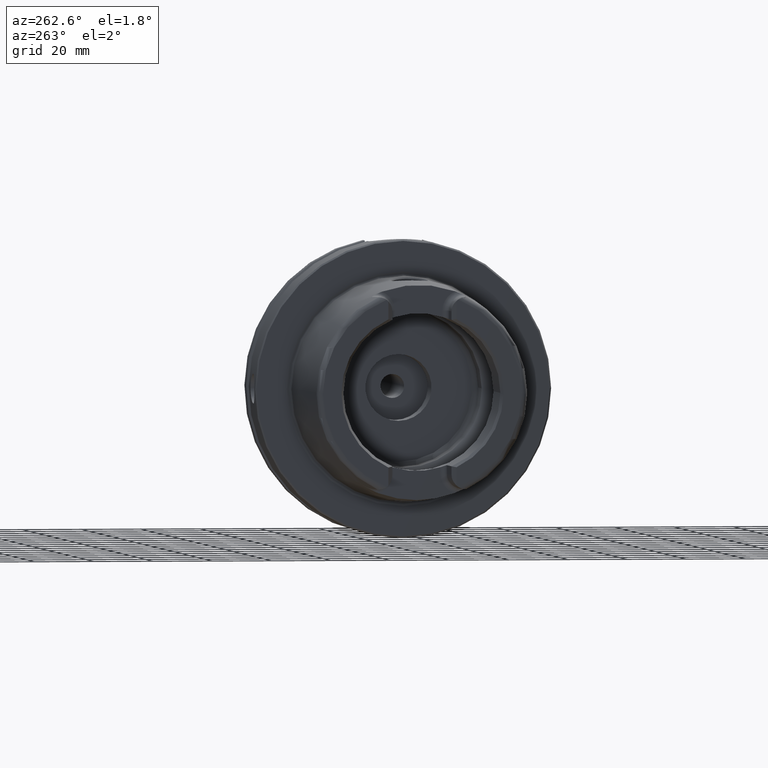
[diagram: clean part render]
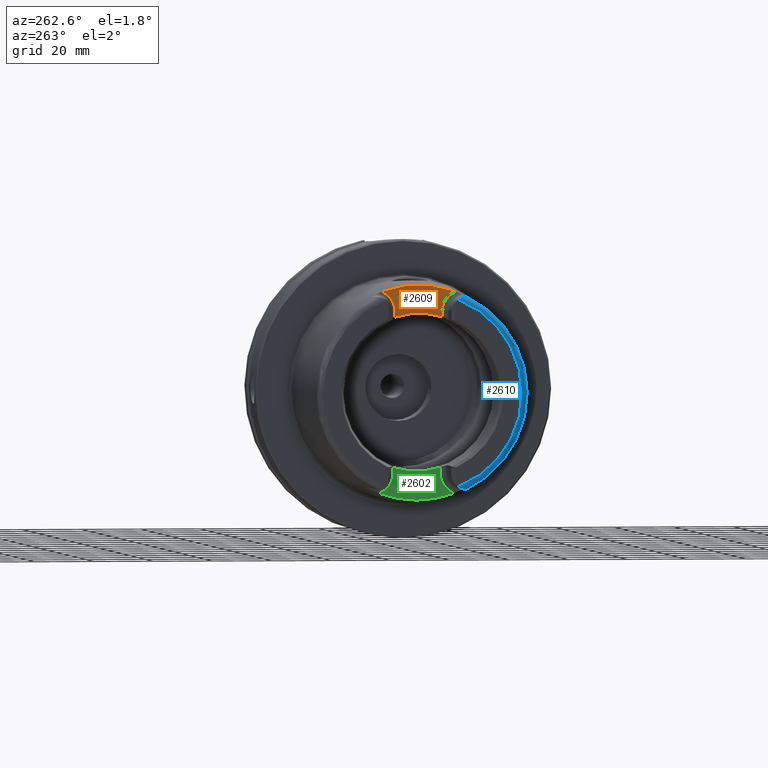
[diagram: same view with three faces highlighted in distinct colors, each labeled with its STEP entity id]
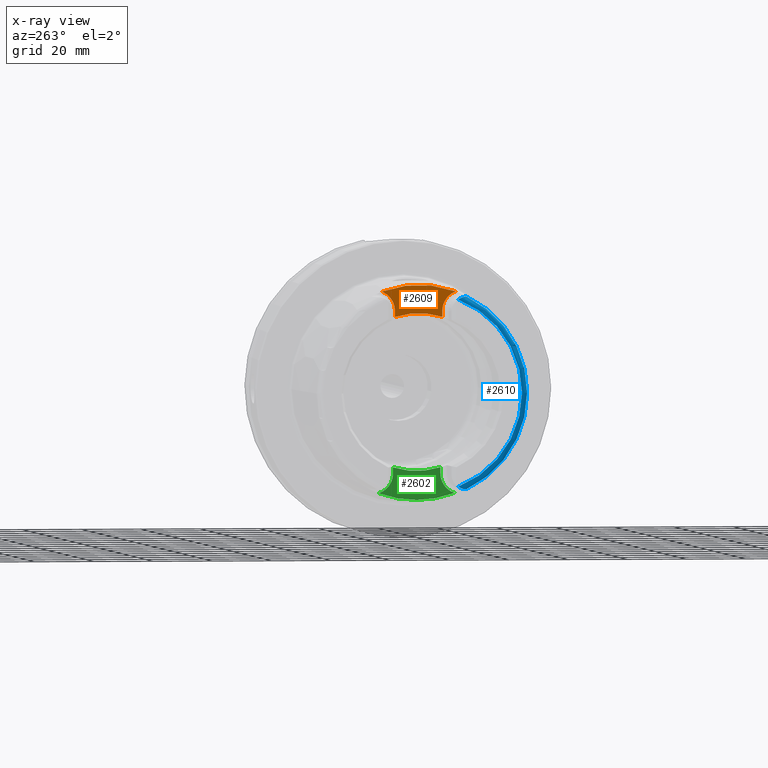
[diagram: x-ray of the same camera — body ghosted, the three highlighted faces saturated]
A machine part, auxiliary view with three faces highlighted in distinct colors.
The next image is the same camera in x-ray (body ghosted, the three faces saturated) — at least one of them is partly hidden behind the body in this view.
Their STEP definitions:

[orange] entity #2609 — the highlighted planar face has unit normal (-1, 0, 0).
#168=PLANE('',#2948);
#272=LINE('',#5372,#386);
#273=LINE('',#5401,#387);
#386=VECTOR('',#3643,10.);
#387=VECTOR('',#3656,10.);
#532=FACE_OUTER_BOUND('',#673,.T.);
#673=EDGE_LOOP('',(#2290,#2291,#2292,#2293,#2294,#2295));
#825=CIRCLE('',#2830,36.003493987976);
#873=CIRCLE('',#2921,6.88);
#875=CIRCLE('',#2924,6.88);
#887=CIRCLE('',#2949,26.5);
#1079=VERTEX_POINT('',#4536);
#1080=VERTEX_POINT('',#4553);
#1178=VERTEX_POINT('',#5369);
#1179=VERTEX_POINT('',#5371);
#1180=VERTEX_POINT('',#5386);
#1181=VERTEX_POINT('',#5390);
#1409=EDGE_CURVE('',#1079,#1080,#825,.T.);
#1554=EDGE_CURVE('',#1178,#1179,#272,.T.);
#1556=EDGE_CURVE('',#1080,#1178,#873,.T.);
#1558=EDGE_CURVE('',#1180,#1079,#875,.T.);
#1560=EDGE_CURVE('',#1181,#1180,#273,.T.);
#1581=EDGE_CURVE('',#1179,#1181,#887,.T.);
#2290=ORIENTED_EDGE('',*,*,#1556,.F.);
#2291=ORIENTED_EDGE('',*,*,#1409,.F.);
#2292=ORIENTED_EDGE('',*,*,#1558,.F.);
#2293=ORIENTED_EDGE('',*,*,#1560,.F.);
#2294=ORIENTED_EDGE('',*,*,#1581,.F.);
#2295=ORIENTED_EDGE('',*,*,#1554,.F.);
#2609=ADVANCED_FACE('',(#532),#168,.T.);
#2830=AXIS2_PLACEMENT_3D('',#4554,#3412,#3413);
#2921=AXIS2_PLACEMENT_3D('',#5384,#3646,#3647);
#2924=AXIS2_PLACEMENT_3D('',#5388,#3652,#3653);
#2948=AXIS2_PLACEMENT_3D('',#5459,#3708,#3709);
#2949=AXIS2_PLACEMENT_3D('',#5460,#3710,#3711);
#3412=DIRECTION('center_axis',(1.,0.,0.));
#3413=DIRECTION('ref_axis',(0.,1.,0.));
#3643=DIRECTION('',(0.,0.,-1.));
#3646=DIRECTION('center_axis',(-1.,0.,0.));
#3647=DIRECTION('ref_axis',(0.,0.564947834751706,0.82512662301574));
#3652=DIRECTION('center_axis',(-1.,0.,0.));
#3653=DIRECTION('ref_axis',(0.,-0.564947834751705,0.825126623015741));
#3656=DIRECTION('',(0.,0.,1.));
#3708=DIRECTION('center_axis',(-1.,0.,0.));
#3709=DIRECTION('ref_axis',(0.,0.,1.));
#3710=DIRECTION('center_axis',(-1.,0.,0.));
#3711=DIRECTION('ref_axis',(0.,1.,0.));
#4536=CARTESIAN_POINT('',(-40.,12.4227760464511,33.7923987701664));
#4553=CARTESIAN_POINT('',(-40.,-12.4227760464511,33.7923987701664));
#4554=CARTESIAN_POINT('Origin',(-40.,0.,0.));
#5369=CARTESIAN_POINT('',(-40.,-8.01,27.37));
#5371=CARTESIAN_POINT('',(-40.,-8.01,25.2604414054862));
#5372=CARTESIAN_POINT('',(-40.,-8.01,23.5));
#5384=CARTESIAN_POINT('Origin',(-40.,-14.89,27.37));
#5386=CARTESIAN_POINT('',(-40.,8.01,27.37));
#5388=CARTESIAN_POINT('Origin',(-40.,14.89,27.37));
#5390=CARTESIAN_POINT('',(-40.,8.01,25.2604414054862));
#5401=CARTESIAN_POINT('',(-40.,8.01,28.185));
#5459=CARTESIAN_POINT('Origin',(-40.,0.,29.));
#5460=CARTESIAN_POINT('Origin',(-40.,0.,0.));

[blue] entity #2610 — the highlighted toroidal blend (fillet) surface has major radius 33.6002 mm and minor (blend) radius 2 mm.
#33=B_SPLINE_CURVE_WITH_KNOTS('',3,(#4219,#4220,#4221,#4222,#4223,#4224,
#4225,#4226,#4227,#4228,#4229,#4230),.UNSPECIFIED.,.F.,.F.,(4,2,2,2,2,4),
(-0.744571126726518,-0.701342830888641,-0.656522678464628,-0.531122919946975,
-0.406784567241786,-0.320835419118986),.UNSPECIFIED.);
#84=B_SPLINE_CURVE_WITH_KNOTS('',3,(#5462,#5463,#5464,#5465,#5466,#5467,
#5468,#5469,#5470,#5471,#5472,#5473),.UNSPECIFIED.,.F.,.F.,(4,2,2,2,2,4),
(-0.330531435638092,-0.267908000768824,-0.159978118105095,-0.0786368985358016,
-0.0319888850382436,0.),.UNSPECIFIED.);
#533=FACE_OUTER_BOUND('',#674,.T.);
#674=EDGE_LOOP('',(#2296,#2297,#2298,#2299,#2300));
#815=CIRCLE('',#2810,33.6001839277785);
#822=CIRCLE('',#2827,35.5976786130245);
#826=CIRCLE('',#2831,35.5976786130245);
#1048=VERTEX_POINT('',#4200);
#1049=VERTEX_POINT('',#4202);
#1054=VERTEX_POINT('',#4218);
#1070=VERTEX_POINT('',#4439);
#1071=VERTEX_POINT('',#4441);
#1369=EDGE_CURVE('',#1049,#1048,#815,.T.);
#1377=EDGE_CURVE('',#1054,#1049,#33,.T.);
#1398=EDGE_CURVE('',#1070,#1071,#822,.T.);
#1411=EDGE_CURVE('',#1054,#1070,#826,.T.);
#1582=EDGE_CURVE('',#1048,#1071,#84,.T.);
#2296=ORIENTED_EDGE('',*,*,#1377,.T.);
#2297=ORIENTED_EDGE('',*,*,#1369,.T.);
#2298=ORIENTED_EDGE('',*,*,#1582,.T.);
#2299=ORIENTED_EDGE('',*,*,#1398,.F.);
#2300=ORIENTED_EDGE('',*,*,#1411,.F.);
#2498=TOROIDAL_SURFACE('',#2950,33.6001839277785,2.);
#2610=ADVANCED_FACE('',(#533),#2498,.T.);
#2810=AXIS2_PLACEMENT_3D('',#4203,#3360,#3361);
#2827=AXIS2_PLACEMENT_3D('',#4442,#3406,#3407);
#2831=AXIS2_PLACEMENT_3D('',#4569,#3414,#3415);
#2950=AXIS2_PLACEMENT_3D('',#5461,#3712,#3713);
#3360=DIRECTION('center_axis',(1.,0.,0.));
#3361=DIRECTION('ref_axis',(0.,0.,-1.));
#3406=DIRECTION('center_axis',(1.,0.,0.));
#3407=DIRECTION('ref_axis',(0.,0.,-1.));
#3414=DIRECTION('center_axis',(1.,0.,0.));
#3415=DIRECTION('ref_axis',(0.,0.,-1.));
#3712=DIRECTION('center_axis',(1.,0.,0.));
#3713=DIRECTION('ref_axis',(0.,0.,-1.));
#4200=CARTESIAN_POINT('',(-50.,-12.0743049948301,-31.355757348091));
#4202=CARTESIAN_POINT('',(-50.,-12.0743049948301,31.355757348091));
#4203=CARTESIAN_POINT('Origin',(-50.,0.,0.));
#4218=CARTESIAN_POINT('',(-48.1000748840304,-15.0787152148571,32.2463497175327));
#4219=CARTESIAN_POINT('Ctrl Pts',(-48.1000748840304,-15.0787152148571,32.2463497175327));
#4220=CARTESIAN_POINT('Ctrl Pts',(-48.2106037175751,-15.0644627457708,32.2469012894916));
#4221=CARTESIAN_POINT('Ctrl Pts',(-48.3154292138326,-15.0273539899824,32.2483385926998));
#4222=CARTESIAN_POINT('Ctrl Pts',(-48.5163157198425,-14.9224481921473,32.2501843906849));
#4223=CARTESIAN_POINT('Ctrl Pts',(-48.6121978837474,-14.8534224082598,32.2504380645671));
#4224=CARTESIAN_POINT('Ctrl Pts',(-48.945264184207,-14.5689466462258,32.2439376039327));
#4225=CARTESIAN_POINT('Ctrl Pts',(-49.1880723127852,-14.2607780319834,32.2227822574558));
#4226=CARTESIAN_POINT('Ctrl Pts',(-49.6101150709732,-13.5547183211213,32.0774653757186));
#4227=CARTESIAN_POINT('Ctrl Pts',(-49.7793847368059,-13.1765954395989,31.957165019384));
#4228=CARTESIAN_POINT('Ctrl Pts',(-49.9574602860506,-12.5580264083439,31.6658578550016));
#4229=CARTESIAN_POINT('Ctrl Pts',(-50.,-12.3091419271059,31.5216553492714));
#4230=CARTESIAN_POINT('Ctrl Pts',(-50.,-12.0743049948301,31.355757348091));
#4439=CARTESIAN_POINT('',(-48.1000748840304,-35.5976786130245,-4.35945831705167E-15));
#4441=CARTESIAN_POINT('',(-48.1000748840304,-15.0787152148571,-32.2463497175327));
#4442=CARTESIAN_POINT('Origin',(-48.1000748840304,0.,0.));
#4569=CARTESIAN_POINT('Origin',(-48.1000748840304,0.,0.));
#5461=CARTESIAN_POINT('Origin',(-48.,0.,0.));
#5462=CARTESIAN_POINT('Ctrl Pts',(-50.,-12.0743049948301,-31.355757348091));
#5463=CARTESIAN_POINT('Ctrl Pts',(-50.,-12.2858381230511,-31.5051926299064));
#5464=CARTESIAN_POINT('Ctrl Pts',(-49.9653696826563,-12.5170331398669,-31.6430588255455));
#5465=CARTESIAN_POINT('Ctrl Pts',(-49.7810065498998,-13.1911222585011,-31.9692156023964));
#5466=CARTESIAN_POINT('Ctrl Pts',(-49.5806767805337,-13.6194685503754,-32.0969374367804));
#5467=CARTESIAN_POINT('Ctrl Pts',(-49.1716377200869,-14.2730899346346,-32.2192774131036));
#5468=CARTESIAN_POINT('Ctrl Pts',(-48.9774936618895,-14.5201969661755,-32.2395201073332));
#5469=CARTESIAN_POINT('Ctrl Pts',(-48.6675943633755,-14.8125911006811,-32.2505512851489));
#5470=CARTESIAN_POINT('Ctrl Pts',(-48.5398374959924,-14.912197389574,-32.2504544601106));
#5471=CARTESIAN_POINT('Ctrl Pts',(-48.3063803700173,-15.0305209025154,-32.2482139663407));
#5472=CARTESIAN_POINT('Ctrl Pts',(-48.2058276135777,-15.0650786147019,-32.2468774553032));
#5473=CARTESIAN_POINT('Ctrl Pts',(-48.1000748840304,-15.0787152148571,-32.2463497175327));

[green] entity #2602 — the highlighted planar face has unit normal (-1, 0, 0).
#165=PLANE('',#2936);
#274=LINE('',#5423,#388);
#277=LINE('',#5435,#391);
#388=VECTOR('',#3669,10.);
#391=VECTOR('',#3684,10.);
#525=FACE_OUTER_BOUND('',#666,.T.);
#666=EDGE_LOOP('',(#2262,#2263,#2264,#2265,#2266,#2267));
#823=CIRCLE('',#2828,36.25399498998);
#879=CIRCLE('',#2930,6.88);
#882=CIRCLE('',#2937,26.5);
#883=CIRCLE('',#2938,6.88);
#1075=VERTEX_POINT('',#4485);
#1076=VERTEX_POINT('',#4496);
#1184=VERTEX_POINT('',#5407);
#1186=VERTEX_POINT('',#5412);
#1188=VERTEX_POINT('',#5432);
#1189=VERTEX_POINT('',#5434);
#1403=EDGE_CURVE('',#1075,#1076,#823,.T.);
#1564=EDGE_CURVE('',#1184,#1075,#879,.T.);
#1566=EDGE_CURVE('',#1186,#1184,#274,.T.);
#1571=EDGE_CURVE('',#1188,#1186,#882,.T.);
#1572=EDGE_CURVE('',#1189,#1188,#277,.T.);
#1573=EDGE_CURVE('',#1076,#1189,#883,.T.);
#2262=ORIENTED_EDGE('',*,*,#1564,.F.);
#2263=ORIENTED_EDGE('',*,*,#1566,.F.);
#2264=ORIENTED_EDGE('',*,*,#1571,.F.);
#2265=ORIENTED_EDGE('',*,*,#1572,.F.);
#2266=ORIENTED_EDGE('',*,*,#1573,.F.);
#2267=ORIENTED_EDGE('',*,*,#1403,.F.);
#2602=ADVANCED_FACE('',(#525),#165,.T.);
#2828=AXIS2_PLACEMENT_3D('',#4497,#3408,#3409);
#2930=AXIS2_PLACEMENT_3D('',#5409,#3665,#3666);
#2936=AXIS2_PLACEMENT_3D('',#5431,#3680,#3681);
#2937=AXIS2_PLACEMENT_3D('',#5433,#3682,#3683);
#2938=AXIS2_PLACEMENT_3D('',#5436,#3685,#3686);
#3408=DIRECTION('center_axis',(1.,0.,0.));
#3409=DIRECTION('ref_axis',(0.,1.,0.));
#3665=DIRECTION('center_axis',(-1.,0.,0.));
#3666=DIRECTION('ref_axis',(0.,0.510937901715381,-0.8596176246394));
#3669=DIRECTION('',(0.,0.,-1.));
#3680=DIRECTION('center_axis',(-1.,0.,0.));
#3681=DIRECTION('ref_axis',(0.,0.,1.));
#3682=DIRECTION('center_axis',(-1.,0.,0.));
#3683=DIRECTION('ref_axis',(0.,1.,0.));
#3684=DIRECTION('',(0.,0.,1.));
#3685=DIRECTION('center_axis',(-1.,0.,0.));
#3686=DIRECTION('ref_axis',(0.,-0.510937901715381,-0.8596176246394));
#4485=CARTESIAN_POINT('',(-35.,-12.7918651267415,-33.9222690767105));
#4496=CARTESIAN_POINT('',(-35.,12.7918651267415,-33.9222690767105));
#4497=CARTESIAN_POINT('Origin',(-35.,0.,0.));
#5407=CARTESIAN_POINT('',(-35.,-8.01,-27.37));
#5409=CARTESIAN_POINT('Origin',(-35.,-14.89,-27.37));
#5412=CARTESIAN_POINT('',(-35.,-8.01,-25.2604414054862));
#5423=CARTESIAN_POINT('',(-35.,-8.01,-28.685));
#5431=CARTESIAN_POINT('Origin',(-35.,8.88178419700125E-15,-30.));
#5432=CARTESIAN_POINT('',(-35.,8.01,-25.2604414054862));
#5433=CARTESIAN_POINT('Origin',(-35.,0.,0.));
#5434=CARTESIAN_POINT('',(-35.,8.01,-27.37));
#5435=CARTESIAN_POINT('',(-35.,8.01,-25.));
#5436=CARTESIAN_POINT('Origin',(-35.,14.89,-27.37));